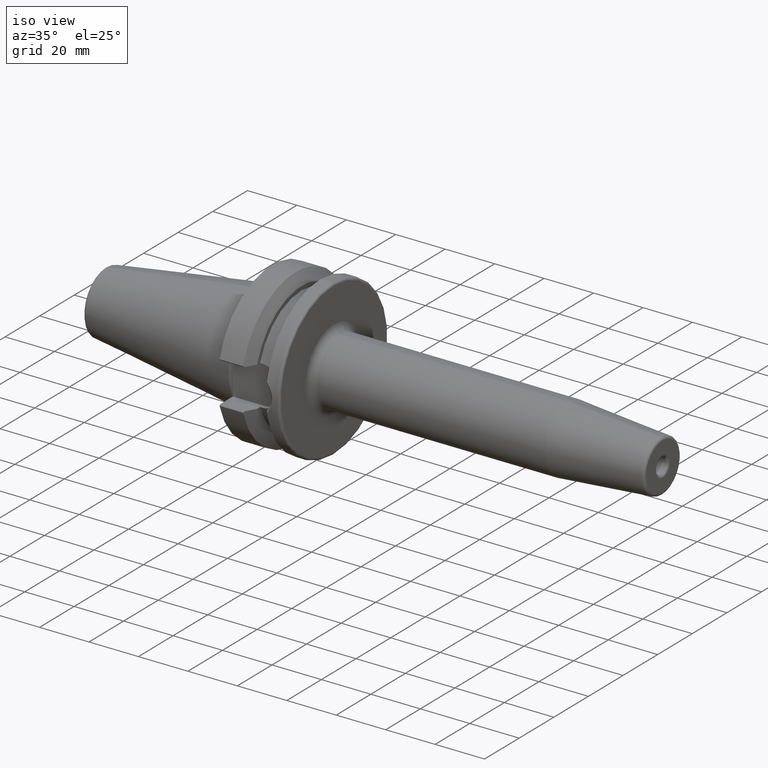
[diagram: clean part render]
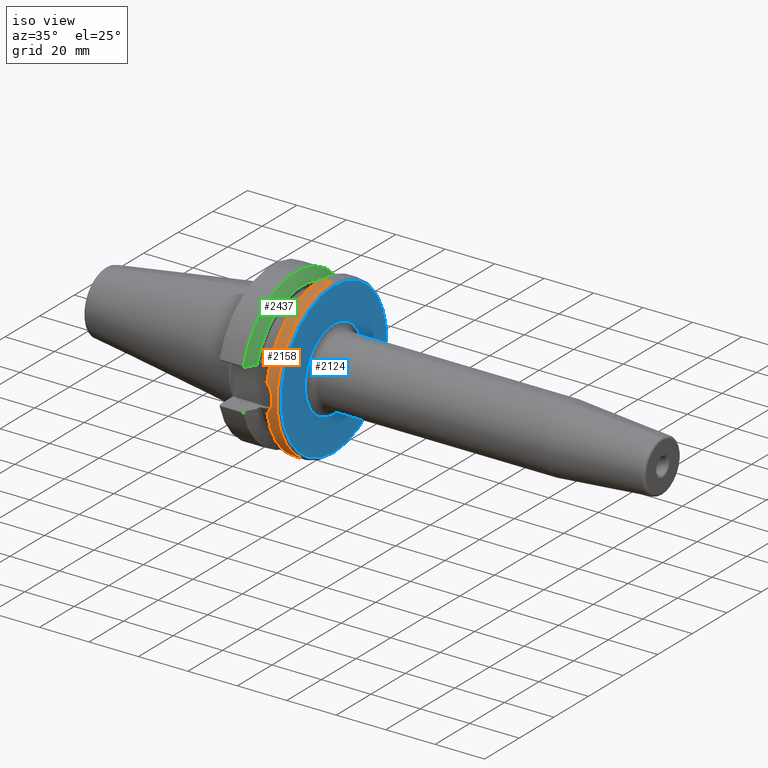
[diagram: same view with three faces highlighted in distinct colors, each labeled with its STEP entity id]
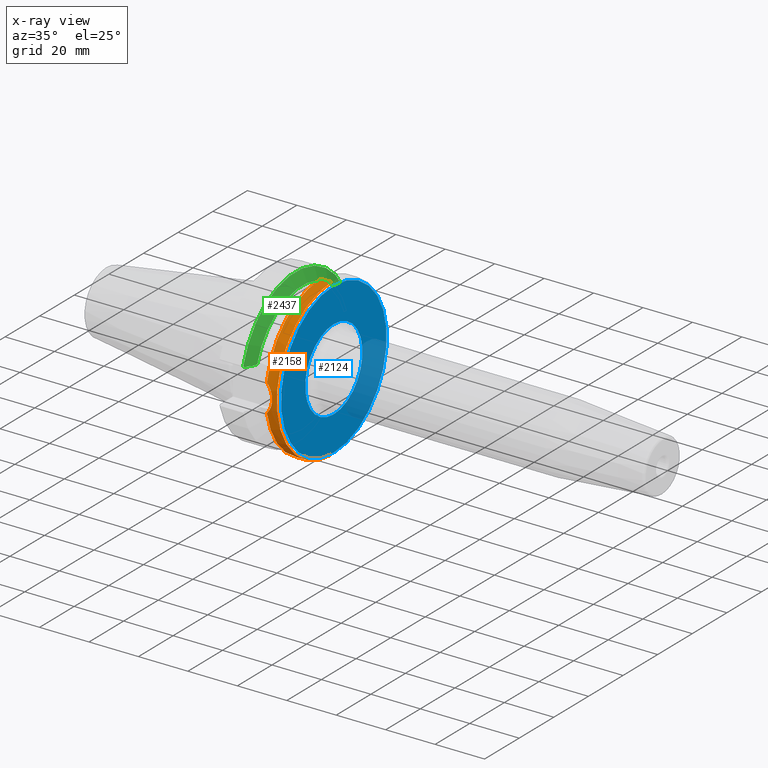
[diagram: x-ray of the same camera — body ghosted, the three highlighted faces saturated]
A machine part, iso view with three faces highlighted in distinct colors.
The next image is the same camera in x-ray (body ghosted, the three faces saturated) — at least one of them is partly hidden behind the body in this view.
Their STEP definitions:

[orange] entity #2158 — the highlighted cylindrical surface (partial cylindrical patch) has radius 31.5 mm, axis along (-1, 0, 0).
#552=CARTESIAN_POINT('',(2.16309635E1,-3.098871085802E1,-5.652415356123E0));
#553=CARTESIAN_POINT('',(2.205378386097E1,-3.106437626211E1,-5.237588564118E0));
#554=CARTESIAN_POINT('',(2.277967683744E1,-3.120635241929E1,-4.364993102037E0));
#555=CARTESIAN_POINT('',(2.355101398651E1,-3.137323042578E1,-2.945722313242E0));
#556=CARTESIAN_POINT('',(2.400111284241E1,-3.147666005267E1,-1.482143093960E0));
#557=CARTESIAN_POINT('',(2.414943639228E1,-3.151166826856E1,
-9.756501077962E-5));
#558=CARTESIAN_POINT('',(2.400114158492E1,-3.147666687228E1,1.481972597727E0));
#559=CARTESIAN_POINT('',(2.355114252106E1,-3.137325946351E1,2.945401291472E0));
#560=CARTESIAN_POINT('',(2.277984535178E1,-3.120638691219E1,4.364766902068E0));
#561=CARTESIAN_POINT('',(2.205386678081E1,-3.106439110095E1,5.237507211902E0));
#562=CARTESIAN_POINT('',(2.16309635E1,-3.098871085802E1,5.652415356123E0));
#564=CARTESIAN_POINT('',(2.6E1,0.E0,0.E0));
#565=DIRECTION('',(-1.E0,0.E0,0.E0));
#566=DIRECTION('',(0.E0,0.E0,-1.E0));
#567=AXIS2_PLACEMENT_3D('',#564,#565,#566);
#569=CARTESIAN_POINT('',(2.16309635E1,0.E0,0.E0));
#570=DIRECTION('',(1.E0,0.E0,0.E0));
#571=DIRECTION('',(0.E0,0.E0,1.E0));
#572=AXIS2_PLACEMENT_3D('',#569,#570,#571);
#596=CARTESIAN_POINT('',(2.16309635E1,-3.098871085802E1,-5.652415356123E0));
#598=CARTESIAN_POINT('',(2.16309635E1,0.E0,0.E0));
#599=DIRECTION('',(1.E0,0.E0,0.E0));
#600=DIRECTION('',(0.E0,-9.837685986673E-1,-1.794417573372E-1));
#601=AXIS2_PLACEMENT_3D('',#598,#599,#600);
#629=CARTESIAN_POINT('',(2.16309635E1,-3.098871085802E1,5.652415356123E0));
#797=DIRECTION('',(-1.E0,2.306190177167E-13,0.E0));
#798=VECTOR('',#797,4.3690365E0);
#799=CARTESIAN_POINT('',(2.6E1,-1.007582905999E-12,-3.15E1));
#800=LINE('',#799,#798);
#806=DIRECTION('',(-1.E0,-3.069721239902E-13,0.E0));
#807=VECTOR('',#806,4.3690365E0);
#808=CARTESIAN_POINT('',(2.6E1,1.339886535057E-12,3.15E1));
#809=LINE('',#808,#807);
#1098=CARTESIAN_POINT('',(2.6E1,0.E0,-3.15E1));
#1099=CARTESIAN_POINT('',(2.6E1,0.E0,3.15E1));
#1100=VERTEX_POINT('',#1098);
#1101=VERTEX_POINT('',#1099);
#1106=CARTESIAN_POINT('',(2.16309635E1,0.E0,-3.15E1));
#1107=VERTEX_POINT('',#1106);
#1108=CARTESIAN_POINT('',(2.16309635E1,0.E0,3.15E1));
#1109=VERTEX_POINT('',#1108);
#1219=VERTEX_POINT('',#629);
#1221=VERTEX_POINT('',#596);
#2140=CARTESIAN_POINT('',(0.E0,0.E0,0.E0));
#2141=DIRECTION('',(-1.E0,0.E0,0.E0));
#2142=DIRECTION('',(0.E0,0.E0,-1.E0));
#2143=AXIS2_PLACEMENT_3D('',#2140,#2141,#2142);
#2144=CYLINDRICAL_SURFACE('',#2143,3.15E1);
#2146=ORIENTED_EDGE('',*,*,#2145,.F.);
#2148=ORIENTED_EDGE('',*,*,#2147,.T.);
#2150=ORIENTED_EDGE('',*,*,#2149,.F.);
#2152=ORIENTED_EDGE('',*,*,#2151,.F.);
#2153=ORIENTED_EDGE('',*,*,#2130,.F.);
#2155=ORIENTED_EDGE('',*,*,#2154,.T.);
#2156=EDGE_LOOP('',(#2146,#2148,#2150,#2152,#2153,#2155));
#2157=FACE_OUTER_BOUND('',#2156,.F.);
#2158=ADVANCED_FACE('',(#2157),#2144,.T.);
#563=B_SPLINE_CURVE_WITH_KNOTS('',3,(#552,#553,#554,#555,#556,#557,#558,#559,
#560,#561,#562),.UNSPECIFIED.,.F.,.F.,(4,1,1,1,1,1,1,1,4),(0.E0,1.25E-1,2.5E-1,
3.75E-1,5.E-1,6.25E-1,7.5E-1,8.75E-1,1.E0),.UNSPECIFIED.);
#568=CIRCLE('',#567,3.15E1);
#573=CIRCLE('',#572,3.15E1);
#602=CIRCLE('',#601,3.15E1);
#2130=EDGE_CURVE('',#1100,#1101,#568,.T.);
#2145=EDGE_CURVE('',#1221,#1107,#602,.T.);
#2147=EDGE_CURVE('',#1221,#1219,#563,.T.);
#2149=EDGE_CURVE('',#1109,#1219,#573,.T.);
#2151=EDGE_CURVE('',#1101,#1109,#809,.T.);
#2154=EDGE_CURVE('',#1100,#1107,#800,.T.);

[blue] entity #2124 — the highlighted planar face has unit normal (-1, 0, 0).
#527=CARTESIAN_POINT('',(2.7E1,0.E0,0.E0));
#528=DIRECTION('',(-1.E0,0.E0,0.E0));
#529=DIRECTION('',(0.E0,0.E0,-1.E0));
#530=AXIS2_PLACEMENT_3D('',#527,#528,#529);
#532=CARTESIAN_POINT('',(2.7E1,0.E0,0.E0));
#533=DIRECTION('',(-1.E0,0.E0,0.E0));
#534=DIRECTION('',(0.E0,0.E0,1.E0));
#535=AXIS2_PLACEMENT_3D('',#532,#533,#534);
#537=CARTESIAN_POINT('',(2.7E1,0.E0,0.E0));
#538=DIRECTION('',(1.E0,0.E0,0.E0));
#539=DIRECTION('',(0.E0,0.E0,-1.E0));
#540=AXIS2_PLACEMENT_3D('',#537,#538,#539);
#542=CARTESIAN_POINT('',(2.7E1,0.E0,0.E0));
#543=DIRECTION('',(1.E0,0.E0,0.E0));
#544=DIRECTION('',(0.E0,0.E0,1.E0));
#545=AXIS2_PLACEMENT_3D('',#542,#543,#544);
#1102=CARTESIAN_POINT('',(2.7E1,0.E0,-3.05E1));
#1103=CARTESIAN_POINT('',(2.7E1,0.E0,3.05E1));
#1104=VERTEX_POINT('',#1102);
#1105=VERTEX_POINT('',#1103);
#1309=CARTESIAN_POINT('',(2.7E1,0.E0,-1.65E1));
#1310=CARTESIAN_POINT('',(2.7E1,0.E0,1.65E1));
#1311=VERTEX_POINT('',#1309);
#1312=VERTEX_POINT('',#1310);
#2108=CARTESIAN_POINT('',(2.7E1,0.E0,0.E0));
#2109=DIRECTION('',(-1.E0,0.E0,0.E0));
#2110=DIRECTION('',(0.E0,0.E0,-1.E0));
#2111=AXIS2_PLACEMENT_3D('',#2108,#2109,#2110);
#2112=PLANE('',#2111);
#2114=ORIENTED_EDGE('',*,*,#2113,.T.);
#2116=ORIENTED_EDGE('',*,*,#2115,.T.);
#2117=EDGE_LOOP('',(#2114,#2116));
#2118=FACE_OUTER_BOUND('',#2117,.F.);
#2120=ORIENTED_EDGE('',*,*,#2119,.T.);
#2121=ORIENTED_EDGE('',*,*,#2098,.T.);
#2122=EDGE_LOOP('',(#2120,#2121));
#2123=FACE_BOUND('',#2122,.F.);
#2124=ADVANCED_FACE('',(#2118,#2123),#2112,.F.);
#531=CIRCLE('',#530,3.05E1);
#536=CIRCLE('',#535,3.05E1);
#541=CIRCLE('',#540,1.65E1);
#546=CIRCLE('',#545,1.65E1);
#2098=EDGE_CURVE('',#1312,#1311,#546,.T.);
#2113=EDGE_CURVE('',#1104,#1105,#531,.T.);
#2115=EDGE_CURVE('',#1105,#1104,#536,.T.);
#2119=EDGE_CURVE('',#1311,#1312,#541,.T.);

[green] entity #2437 — the highlighted conical surface has half-angle 60 deg.
#814=CARTESIAN_POINT('',(1.187809346105E1,-2.99E1,8.05E0));
#815=CARTESIAN_POINT('',(1.213608092362E1,-2.943724098956E1,8.05E0));
#816=CARTESIAN_POINT('',(1.264468361145E1,-2.852349489558E1,8.05E0));
#817=CARTESIAN_POINT('',(1.338523875630E1,-2.718836773100E1,8.05E0));
#818=CARTESIAN_POINT('',(1.386422691872E1,-2.632143557624E1,8.05E0));
#819=CARTESIAN_POINT('',(1.41E1,-2.589378524176E1,8.05E0));
#821=CARTESIAN_POINT('',(1.187809346105E1,-2.99E1,8.05E0));
#822=CARTESIAN_POINT('',(1.182713521652E1,-2.997201619131E1,8.122016191313E0));
#823=CARTESIAN_POINT('',(1.172466733692E1,-3.011662367171E1,8.266623671706E0));
#824=CARTESIAN_POINT('',(1.162109709478E1,-3.026238149525E1,8.412381495246E0));
#825=CARTESIAN_POINT('',(1.15690365E1,-3.033554803451E1,8.485548034509E0));
#827=CARTESIAN_POINT('',(1.15690365E1,0.E0,0.E0));
#828=DIRECTION('',(-1.E0,0.E0,0.E0));
#829=DIRECTION('',(0.E0,-9.630332709368E-1,2.693824772860E-1));
#830=AXIS2_PLACEMENT_3D('',#827,#828,#829);
#832=CARTESIAN_POINT('',(1.15690365E1,3.033554803451E1,8.485548034509E0));
#833=CARTESIAN_POINT('',(1.160374372037E1,3.028677012076E1,8.436770120760E0));
#834=CARTESIAN_POINT('',(1.167291318461E1,3.018947011785E1,8.339470117850E0));
#835=CARTESIAN_POINT('',(1.177593175280E1,3.004428820337E1,8.194288203375E0));
#836=CARTESIAN_POINT('',(1.184412122820E1,2.994801089289E1,8.098010892889E0));
#837=CARTESIAN_POINT('',(1.187809346105E1,2.99E1,8.05E0));
#839=CARTESIAN_POINT('',(1.41E1,2.589378524176E1,8.05E0));
#840=CARTESIAN_POINT('',(1.386450321254E1,2.632093442852E1,8.05E0));
#841=CARTESIAN_POINT('',(1.338588549183E1,2.718719892029E1,8.05E0));
#842=CARTESIAN_POINT('',(1.264535440845E1,2.852228833534E1,8.05E0));
#843=CARTESIAN_POINT('',(1.213636912487E1,2.943672403527E1,8.05E0));
#844=CARTESIAN_POINT('',(1.187809346105E1,2.99E1,8.05E0));
#846=CARTESIAN_POINT('',(1.41E1,0.E0,0.E0));
#847=DIRECTION('',(1.E0,0.E0,0.E0));
#848=DIRECTION('',(0.E0,9.549178917964E-1,2.968700387830E-1));
#849=AXIS2_PLACEMENT_3D('',#846,#847,#848);
#1074=CARTESIAN_POINT('',(1.41E1,2.589378524176E1,8.05E0));
#1076=VERTEX_POINT('',#1074);
#1176=VERTEX_POINT('',#832);
#1177=VERTEX_POINT('',#837);
#1194=CARTESIAN_POINT('',(1.15690365E1,-3.033554803451E1,8.485548034509E0));
#1196=VERTEX_POINT('',#1194);
#1210=VERTEX_POINT('',#814);
#1211=VERTEX_POINT('',#819);
#2419=CARTESIAN_POINT('',(1.283451825E1,0.E0,0.E0));
#2420=DIRECTION('',(-1.E0,0.E0,0.E0));
#2421=DIRECTION('',(0.E0,0.E0,-1.E0));
#2422=AXIS2_PLACEMENT_3D('',#2419,#2420,#2421);
#2423=CONICAL_SURFACE('',#2422,2.930812131295E1,6.E1);
#2425=ORIENTED_EDGE('',*,*,#2424,.F.);
#2427=ORIENTED_EDGE('',*,*,#2426,.T.);
#2428=ORIENTED_EDGE('',*,*,#2385,.T.);
#2430=ORIENTED_EDGE('',*,*,#2429,.T.);
#2432=ORIENTED_EDGE('',*,*,#2431,.F.);
#2434=ORIENTED_EDGE('',*,*,#2433,.T.);
#2435=EDGE_LOOP('',(#2425,#2427,#2428,#2430,#2432,#2434));
#2436=FACE_OUTER_BOUND('',#2435,.F.);
#2437=ADVANCED_FACE('',(#2436),#2423,.T.);
#820=B_SPLINE_CURVE_WITH_KNOTS('',3,(#814,#815,#816,#817,#818,#819),
.UNSPECIFIED.,.F.,.F.,(4,1,1,4),(0.E0,3.333333333333E-1,6.666666666667E-1,1.E0),
.UNSPECIFIED.);
#826=B_SPLINE_CURVE_WITH_KNOTS('',3,(#821,#822,#823,#824,#825),.UNSPECIFIED.,
.F.,.F.,(4,1,4),(0.E0,5.E-1,1.E0),.UNSPECIFIED.);
#831=CIRCLE('',#830,3.15E1);
#838=B_SPLINE_CURVE_WITH_KNOTS('',3,(#832,#833,#834,#835,#836,#837),
.UNSPECIFIED.,.F.,.F.,(4,1,1,4),(0.E0,3.333333333333E-1,6.666666666667E-1,1.E0),
.UNSPECIFIED.);
#845=B_SPLINE_CURVE_WITH_KNOTS('',3,(#839,#840,#841,#842,#843,#844),
.UNSPECIFIED.,.F.,.F.,(4,1,1,4),(0.E0,3.333333333333E-1,6.666666666667E-1,1.E0),
.UNSPECIFIED.);
#850=CIRCLE('',#849,2.711624262590E1);
#2385=EDGE_CURVE('',#1196,#1176,#831,.T.);
#2424=EDGE_CURVE('',#1210,#1211,#820,.T.);
#2426=EDGE_CURVE('',#1210,#1196,#826,.T.);
#2429=EDGE_CURVE('',#1176,#1177,#838,.T.);
#2431=EDGE_CURVE('',#1076,#1177,#845,.T.);
#2433=EDGE_CURVE('',#1076,#1211,#850,.T.);